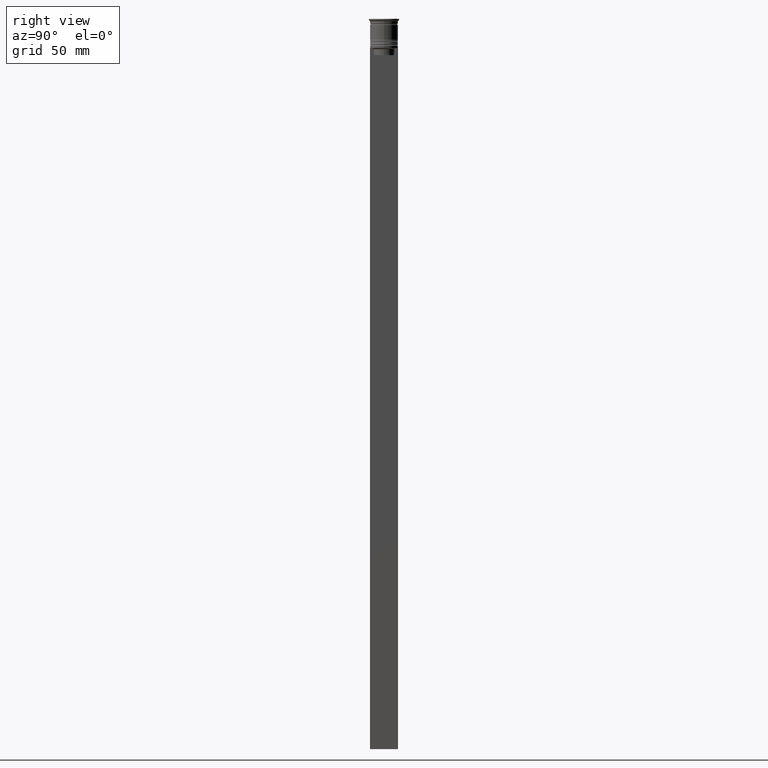
[diagram: clean part render]
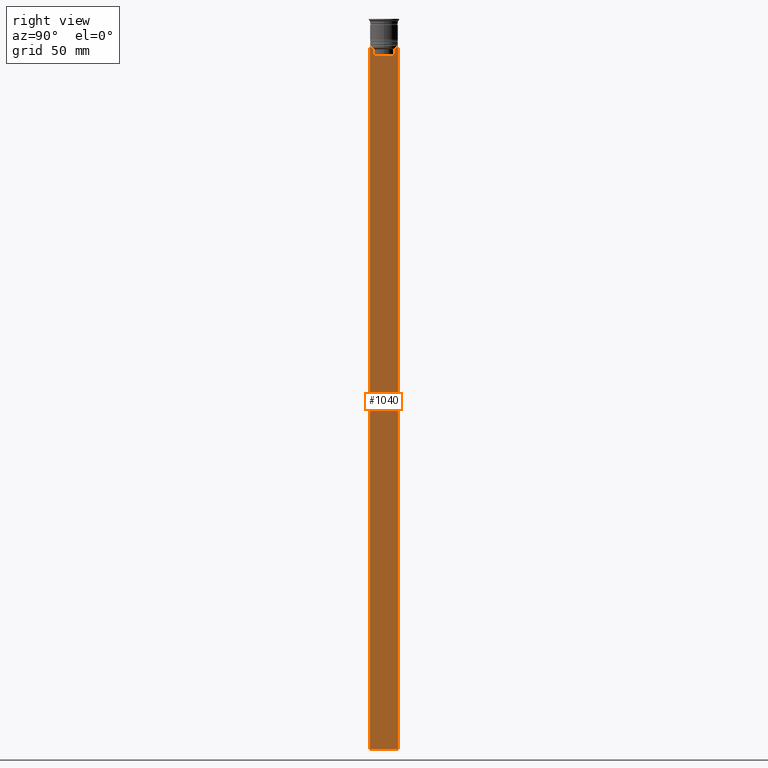
[diagram: same view with one face highlighted and labeled with its STEP entity id]
A machine part, right view. The second image highlights one B-rep face of the part: STEP entity #1040.
In plain terms, the highlighted planar face has unit normal (-1, 0, 0).
Its self-contained STEP definition (entity closure, byte-faithful):
#41 = ORIENTED_EDGE ( 'NONE', *, *, #564, .F. ) ;
#53 = AXIS2_PLACEMENT_3D ( 'NONE', #1698, #1664, #1491 ) ;
#55 = ORIENTED_EDGE ( 'NONE', *, *, #320, .T. ) ;
#56 = DIRECTION ( 'NONE',  ( 0.000000000000000000, -1.000000000000000000, 0.000000000000000000 ) ) ;
#69 = EDGE_CURVE ( 'NONE', #530, #1402, #1764, .T. ) ;
#134 = CARTESIAN_POINT ( 'NONE',  ( 0.5000000000000002220, 6.000000000000000888, -12.50000000000000000 ) ) ;
#139 = FACE_OUTER_BOUND ( 'NONE', #469, .T. ) ;
#144 = DIRECTION ( 'NONE',  ( 0.000000000000000000, -1.000000000000000000, 0.000000000000000000 ) ) ;
#148 = CARTESIAN_POINT ( 'NONE',  ( 0.5000000000000002220, -6.000000000000000000, -12.50000000000000000 ) ) ;
#190 = EDGE_CURVE ( 'NONE', #993, #1359, #1870, .T. ) ;
#203 = ORIENTED_EDGE ( 'NONE', *, *, #69, .T. ) ;
#216 = VECTOR ( 'NONE', #966, 1000.000000000000000 ) ;
#220 = EDGE_CURVE ( 'NONE', #1402, #993, #1598, .T. ) ;
#232 = CARTESIAN_POINT ( 'NONE',  ( 0.5000000000000002220, -6.000000000000000000, -12.50000000000000000 ) ) ;
#238 = VERTEX_POINT ( 'NONE', #1679 ) ;
#270 = EDGE_CURVE ( 'NONE', #1876, #1176, #2059, .T. ) ;
#320 = EDGE_CURVE ( 'NONE', #1359, #1404, #1370, .T. ) ;
#338 = EDGE_CURVE ( 'NONE', #1621, #1564, #1958, .T. ) ;
#339 = DIRECTION ( 'NONE',  ( 0.000000000000000000, -1.000000000000000000, 0.000000000000000000 ) ) ;
#370 = PLANE ( 'NONE',  #53 ) ;
#444 = CARTESIAN_POINT ( 'NONE',  ( 0.5000000000000002220, -4.371498598878878816, 0.000000000000000000 ) ) ;
#469 = EDGE_LOOP ( 'NONE', ( #1432, #606, #750, #1160, #203, #1504, #2091, #55, #1762, #2248, #41, #594 ) ) ;
#530 = VERTEX_POINT ( 'NONE', #879 ) ;
#536 = CARTESIAN_POINT ( 'NONE',  ( 0.5000000000000002220, -4.706831372970962768, -12.66671687695981774 ) ) ;
#564 = EDGE_CURVE ( 'NONE', #1876, #1143, #1458, .T. ) ;
#594 = ORIENTED_EDGE ( 'NONE', *, *, #270, .T. ) ;
#595 = LINE ( 'NONE', #2315, #216 ) ;
#606 = ORIENTED_EDGE ( 'NONE', *, *, #338, .T. ) ;
#610 = LINE ( 'NONE', #1722, #714 ) ;
#714 = VECTOR ( 'NONE', #998, 1000.000000000000000 ) ;
#748 = CARTESIAN_POINT ( 'NONE',  ( 0.5000000000000002220, 4.371498598878878816, 0.000000000000000000 ) ) ;
#750 = ORIENTED_EDGE ( 'NONE', *, *, #2255, .T. ) ;
#777 = EDGE_CURVE ( 'NONE', #1176, #1621, #610, .T. ) ;
#879 = CARTESIAN_POINT ( 'NONE',  ( 0.5000000000000002220, -4.371498598878878816, -15.50000000000000000 ) ) ;
#966 = DIRECTION ( 'NONE',  ( 0.000000000000000000, 0.000000000000000000, -1.000000000000000000 ) ) ;
#972 = CARTESIAN_POINT ( 'NONE',  ( 0.5000000000000002220, -4.371498598878878816, -13.00000000000000178 ) ) ;
#993 = VERTEX_POINT ( 'NONE', #2077 ) ;
#998 = DIRECTION ( 'NONE',  ( 0.000000000000000000, -1.000000000000000000, 0.000000000000000000 ) ) ;
#1001 = CARTESIAN_POINT ( 'NONE',  ( 0.5000000000000002220, 4.371498598878878816, -13.00000000000000178 ) ) ;
#1010 = VERTEX_POINT ( 'NONE', #2088 ) ;
#1040 = ADVANCED_FACE ( 'NONE', ( #139 ), #370, .F. ) ;
#1143 = VERTEX_POINT ( 'NONE', #1550 ) ;
#1160 = ORIENTED_EDGE ( 'NONE', *, *, #1699, .T. ) ;
#1176 = VERTEX_POINT ( 'NONE', #1923 ) ;
#1187 = EDGE_CURVE ( 'NONE', #1404, #238, #595, .T. ) ;
#1229 = CARTESIAN_POINT ( 'NONE',  ( 0.5000000000000002220, -5.878775382679627626, -12.50000000000000000 ) ) ;
#1249 = CARTESIAN_POINT ( 'NONE',  ( 0.5000000000000002220, 4.399999999999999467, -15.50000000000000000 ) ) ;
#1271 = DIRECTION ( 'NONE',  ( 0.000000000000000000, 0.000000000000000000, -1.000000000000000000 ) ) ;
#1303 = VECTOR ( 'NONE', #1271, 1000.000000000000000 ) ;
#1357 = CARTESIAN_POINT ( 'NONE',  ( 0.5000000000000002220, 4.371498598878878816, -13.00000000000000178 ) ) ;
#1359 = VERTEX_POINT ( 'NONE', #1229 ) ;
#1370 = LINE ( 'NONE', #232, #1737 ) ;
#1402 = VERTEX_POINT ( 'NONE', #1673 ) ;
#1404 = VERTEX_POINT ( 'NONE', #148 ) ;
#1420 = VECTOR ( 'NONE', #144, 1000.000000000000000 ) ;
#1432 = ORIENTED_EDGE ( 'NONE', *, *, #777, .T. ) ;
#1447 = DIRECTION ( 'NONE',  ( 0.000000000000000000, -1.000000000000000000, 0.000000000000000000 ) ) ;
#1458 = LINE ( 'NONE', #2219, #1303 ) ;
#1472 = CARTESIAN_POINT ( 'NONE',  ( 0.5000000000000002220, -6.000000000000000000, -312.5000000000000000 ) ) ;
#1491 = DIRECTION ( 'NONE',  ( 0.000000000000000000, 0.000000000000000000, 1.000000000000000000 ) ) ;
#1493 = LINE ( 'NONE', #748, #1707 ) ;
#1504 = ORIENTED_EDGE ( 'NONE', *, *, #220, .T. ) ;
#1550 = CARTESIAN_POINT ( 'NONE',  ( 0.5000000000000002220, 6.000000000000000888, -312.5000000000000000 ) ) ;
#1564 = VERTEX_POINT ( 'NONE', #1001 ) ;
#1582 = CARTESIAN_POINT ( 'NONE',  ( 0.5000000000000002220, 4.874423042781576676, -12.50000000000000000 ) ) ;
#1598 = B_SPLINE_CURVE_WITH_KNOTS ( 'NONE', 3,
 ( #972, #2094, #536, #1880 ),
 .UNSPECIFIED., .F., .F.,
 ( 4, 4 ),
 ( 0.02089901220910808308, 0.02161421017310286019 ),
 .UNSPECIFIED. ) ;
#1604 = LINE ( 'NONE', #1472, #1857 ) ;
#1621 = VERTEX_POINT ( 'NONE', #2337 ) ;
#1650 = DIRECTION ( 'NONE',  ( 0.000000000000000000, 1.000000000000000000, 0.000000000000000000 ) ) ;
#1664 = DIRECTION ( 'NONE',  ( -1.000000000000000000, 0.000000000000000000, 0.000000000000000000 ) ) ;
#1673 = CARTESIAN_POINT ( 'NONE',  ( 0.5000000000000002220, -4.371498598878878816, -13.00000000000000178 ) ) ;
#1679 = CARTESIAN_POINT ( 'NONE',  ( 0.5000000000000002220, -6.000000000000000000, -312.5000000000000000 ) ) ;
#1698 = CARTESIAN_POINT ( 'NONE',  ( 0.5000000000000002220, -6.000000000000000000, -0.4584054212077061097 ) ) ;
#1699 = EDGE_CURVE ( 'NONE', #1010, #530, #2184, .T. ) ;
#1707 = VECTOR ( 'NONE', #2089, 1000.000000000000000 ) ;
#1722 = CARTESIAN_POINT ( 'NONE',  ( 0.5000000000000002220, -6.000000000000000000, -12.50000000000000000 ) ) ;
#1737 = VECTOR ( 'NONE', #56, 1000.000000000000000 ) ;
#1762 = ORIENTED_EDGE ( 'NONE', *, *, #1187, .T. ) ;
#1764 = LINE ( 'NONE', #444, #2139 ) ;
#1776 = CARTESIAN_POINT ( 'NONE',  ( 0.5000000000000002220, 4.539195634199896467, -12.83338923751318816 ) ) ;
#1857 = VECTOR ( 'NONE', #1650, 1000.000000000000000 ) ;
#1870 = LINE ( 'NONE', #2082, #1420 ) ;
#1876 = VERTEX_POINT ( 'NONE', #134 ) ;
#1880 = CARTESIAN_POINT ( 'NONE',  ( 0.5000000000000002220, -4.874423042781576676, -12.50000000000000000 ) ) ;
#1923 = CARTESIAN_POINT ( 'NONE',  ( 0.5000000000000002220, 5.878775382679627626, -12.50000000000000000 ) ) ;
#1958 = B_SPLINE_CURVE_WITH_KNOTS ( 'NONE', 3,
 ( #1582, #2157, #1776, #1357 ),
 .UNSPECIFIED., .F., .F.,
 ( 4, 4 ),
 ( 0.008336552452178421987, 0.009045730124312839626 ),
 .UNSPECIFIED. ) ;
#2059 = LINE ( 'NONE', #2448, #2465 ) ;
#2077 = CARTESIAN_POINT ( 'NONE',  ( 0.5000000000000002220, -4.874423042781576676, -12.50000000000000000 ) ) ;
#2082 = CARTESIAN_POINT ( 'NONE',  ( 0.5000000000000002220, -6.000000000000000000, -12.50000000000000000 ) ) ;
#2088 = CARTESIAN_POINT ( 'NONE',  ( 0.5000000000000002220, 4.371498598878878816, -15.50000000000000000 ) ) ;
#2089 = DIRECTION ( 'NONE',  ( 0.000000000000000000, 0.000000000000000000, -1.000000000000000000 ) ) ;
#2091 = ORIENTED_EDGE ( 'NONE', *, *, #190, .T. ) ;
#2094 = CARTESIAN_POINT ( 'NONE',  ( 0.5000000000000002220, -4.539195586926423331, -12.83338928448044314 ) ) ;
#2100 = EDGE_CURVE ( 'NONE', #238, #1143, #1604, .T. ) ;
#2139 = VECTOR ( 'NONE', #2160, 1000.000000000000000 ) ;
#2157 = CARTESIAN_POINT ( 'NONE',  ( 0.5000000000000002220, 4.706831415367288329, -12.66671683478479160 ) ) ;
#2160 = DIRECTION ( 'NONE',  ( -0.000000000000000000, -0.000000000000000000, 1.000000000000000000 ) ) ;
#2184 = LINE ( 'NONE', #1249, #2256 ) ;
#2219 = CARTESIAN_POINT ( 'NONE',  ( 0.5000000000000002220, 6.000000000000000888, -0.4584054212077061097 ) ) ;
#2248 = ORIENTED_EDGE ( 'NONE', *, *, #2100, .T. ) ;
#2255 = EDGE_CURVE ( 'NONE', #1564, #1010, #1493, .T. ) ;
#2256 = VECTOR ( 'NONE', #1447, 1000.000000000000000 ) ;
#2315 = CARTESIAN_POINT ( 'NONE',  ( 0.5000000000000002220, -6.000000000000000000, -0.4584054212077061097 ) ) ;
#2337 = CARTESIAN_POINT ( 'NONE',  ( 0.5000000000000002220, 4.874423042781576676, -12.50000000000000000 ) ) ;
#2448 = CARTESIAN_POINT ( 'NONE',  ( 0.5000000000000002220, -6.000000000000000000, -12.50000000000000000 ) ) ;
#2465 = VECTOR ( 'NONE', #339, 1000.000000000000000 ) ;